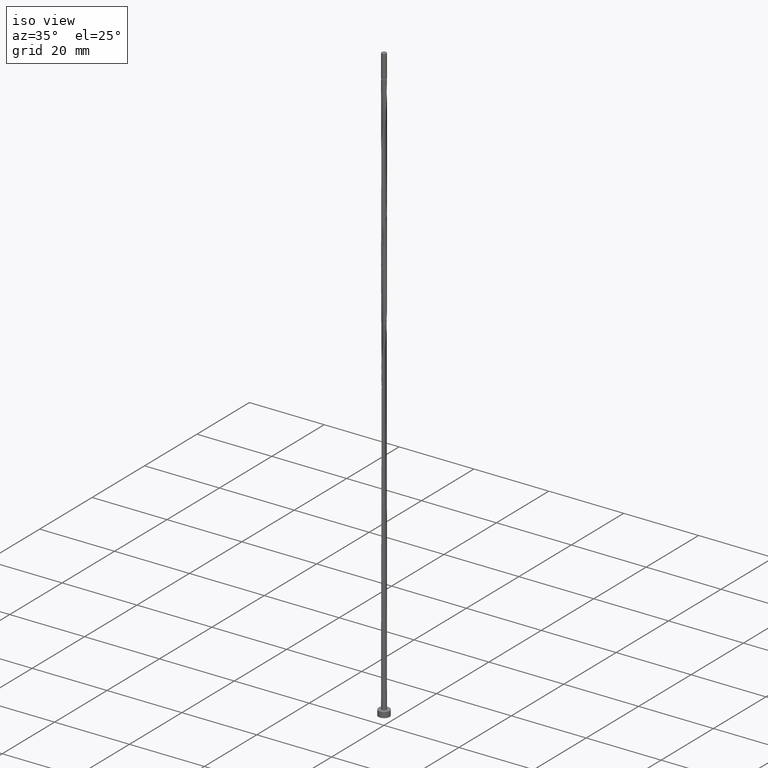
[diagram: clean part render]
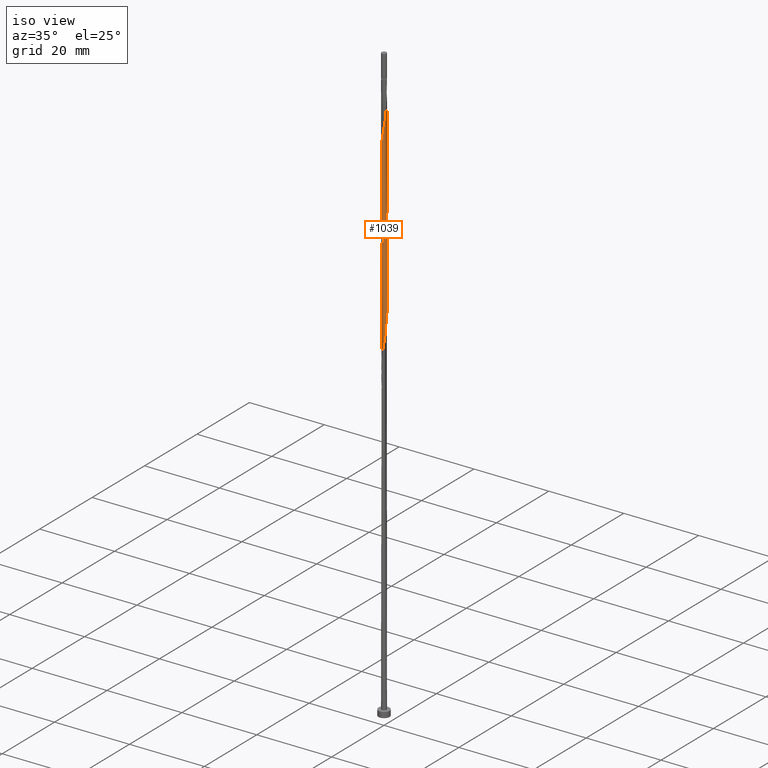
[diagram: same view with one face highlighted and labeled with its STEP entity id]
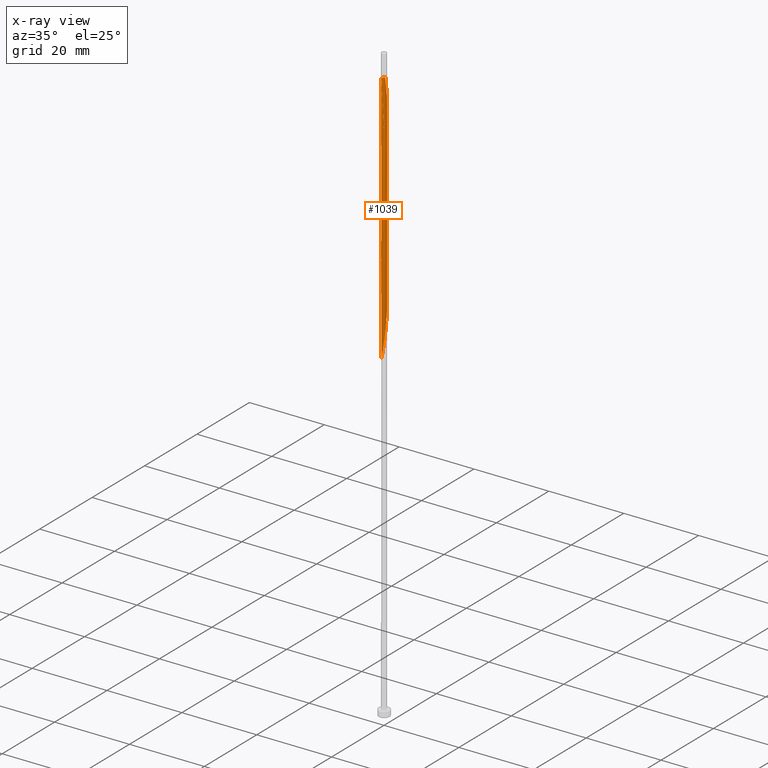
[diagram: x-ray of the same camera — body ghosted, the highlighted face saturated]
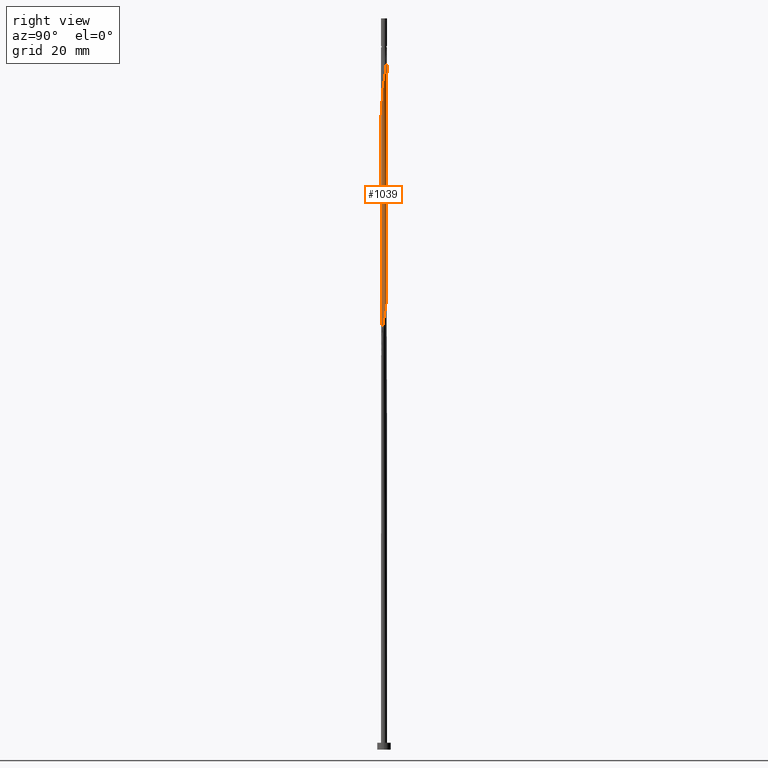
[diagram: same view with one face highlighted and labeled with its STEP entity id]
A machine part, iso view. The second image highlights one B-rep face of the part: STEP entity #1039.
The next image is the same camera in x-ray: the body ghosted, the highlighted face saturated — about 0% of this face is hidden behind the body in this view.
A second angle (right view) of the same face is appended — the face is thin or edge-on in the first view.
In plain terms, the highlighted cylindrical surface (bore or boss wall) has radius 0.65 mm, axis along (-0, -0, -1).
Its self-contained STEP definition (entity closure, byte-faithful):
#11 = CARTESIAN_POINT ( 'NONE',  ( -0.6435504153047297837, 0.1306784853822362258, 133.6889187798224725 ) ) ;
#12 = DIRECTION ( 'NONE',  ( -0.000000000000000000, -0.000000000000000000, -1.000000000000000000 ) ) ;
#29 = CARTESIAN_POINT ( 'NONE',  ( -0.2209351400986595826, -0.6184025124870299317, 86.41619150709522046 ) ) ;
#39 = CARTESIAN_POINT ( 'NONE',  ( 0.6120391835909891887, -0.2379958851114041540, 144.5980096889134643 ) ) ;
#48 = CARTESIAN_POINT ( 'NONE',  ( 0.1293483668238615825, 0.6370000000000007878, 127.0222521131558153 ) ) ;
#50 =( BOUNDED_CURVE ( )  B_SPLINE_CURVE ( 2, ( #1368, #166, #306, #1376, #1138, #54, #295, #546, #1504, #806, #432, #1263, #930, #173, #671, #357, #1436, #737, #457, #1081, #565, #1293, #104, #1171, #1524, #854, #710, #1190, #586, #234, #1535, #200, #952, #1045, #700, #577, #86, #1055, #1517, #449, #961, #1427, #1420, #340, #837, #849, #1303, #220, #721, #604, #495, #380, #1092, #872, #760, #257, #1224, #137, #627, #29, #1352, #386, #635, #266, #509, #768, #143, #1003, #273 ),
 .UNSPECIFIED., .F., .T. ) 
 B_SPLINE_CURVE_WITH_KNOTS ( ( 3, 2, 2, 2, 2, 2, 2, 2, 2, 2, 2, 2, 2, 2, 2, 2, 2, 2, 2, 2, 2, 2, 2, 2, 2, 2, 2, 2, 2, 2, 2, 2, 2, 2, 3 ),
 ( 0.5545252162417514397, 0.5568181818181817677, 0.5681818181818182323, 0.5795454545454545858, 0.5909090909090909394, 0.6022727272727272929, 0.6136363636363636465, 0.6250000000000000000, 0.6363636363636363535, 0.6477272727272727071, 0.6590909090909090606, 0.6704545454545454142, 0.6818181818181817677, 0.6931818181818182323, 0.7045454545454545858, 0.7159090909090909394, 0.7272727272727272929, 0.7386363636363636465, 0.7500000000000000000, 0.7613636363636363535, 0.7727272727272727071, 0.7840909090909090606, 0.7954545454545454142, 0.8068181818181817677, 0.8181818181818182323, 0.8295454545454545858, 0.8409090909090909394, 0.8522727272727272929, 0.8636363636363636465, 0.8750000000000000000, 0.8863636363636363535, 0.8977272727272727071, 0.9090909090909090606, 0.9204545454545454142, 0.9295252162417511066 ),
 .UNSPECIFIED. ) 
 CURVE ( )  GEOMETRIC_REPRESENTATION_ITEM ( )  RATIONAL_B_SPLINE_CURVE ( ( 0.9061101570135963179, 0.9072237824201785372, 0.9090909090909560231, 0.8998376744372580394, 0.9090909090909560231, 0.8998376744372580394, 0.9090909090909560231, 0.8998376744372580394, 0.9090909090909560231, 0.8998376744372580394, 0.9090909090909560231, 0.8998376744372580394, 0.9090909090909560231, 0.8998376744372580394, 0.9090909090909560231, 0.8998376744372580394, 0.9090909090909560231, 0.8998376744372580394, 0.9090909090909560231, 0.8998376744372580394, 0.9090909090909560231, 0.8998376744372580394, 0.9090909090909560231, 0.8998376744372580394, 0.9090909090909560231, 0.8998376744372580394, 0.9090909090909560231, 0.8998376744372580394, 0.9090909090909560231, 0.8998376744372580394, 0.9090909090909560231, 0.8998376744372580394, 0.9090909090909560231, 0.8998376744372580394, 0.9090909090909560231, 0.8998376744372580394, 0.9090909090909560231, 0.8998376744372580394, 0.9090909090909560231, 0.8998376744372580394, 0.9090909090909560231, 0.8998376744372580394, 0.9090909090909560231, 0.8998376744372580394, 0.9090909090909560231, 0.8998376744372580394, 0.9090909090909560231, 0.8998376744372580394, 0.9090909090909560231, 0.8998376744372580394, 0.9090909090909560231, 0.8998376744372580394, 0.9090909090909560231, 0.8998376744372580394, 0.9090909090909560231, 0.8998376744372580394, 0.9090909090909560231, 0.8998376744372580394, 0.9090909090909560231, 0.8998376744372580394, 0.9090909090909560231, 0.8998376744372580394, 0.9090909090909560231, 0.8998376744372580394, 0.9090909090909560231, 0.8998376744372580394, 0.9090909090909560231, 0.9017048011080357472, 0.9061101570135960959 ) ) 
 REPRESENTATION_ITEM ( '' )  );
#54 = CARTESIAN_POINT ( 'NONE',  ( 0.5806657178406771092, -0.3066941924870058567, 119.1434642343679400 ) ) ;
#55 = CARTESIAN_POINT ( 'NONE',  ( 0.2209351400986597491, 0.6184025124870299317, 126.4161915070952062 ) ) ;
#58 = ORIENTED_EDGE ( 'NONE', *, *, #121, .T. ) ;
#62 = CARTESIAN_POINT ( 'NONE',  ( 0.4532029712757329465, 0.4659474936372641762, 124.5980096889134074 ) ) ;
#70 = CARTESIAN_POINT ( 'NONE',  ( 0.3862098355493334689, -0.5311082436807418317, 142.1737672646709711 ) ) ;
#86 = CARTESIAN_POINT ( 'NONE',  ( 0.1293483668238615825, 0.6370000000000007878, 100.3555854464891439 ) ) ;
#87 = CYLINDRICAL_SURFACE ( 'NONE', #966, 0.6500000000000000222 ) ;
#95 = ORIENTED_EDGE ( 'NONE', *, *, #617, .F. ) ;
#102 = VERTEX_POINT ( 'NONE', #1106 ) ;
#104 = CARTESIAN_POINT ( 'NONE',  ( -0.6331688345267361129, -0.1469599502723646089, 108.8404339313376425 ) ) ;
#121 = EDGE_CURVE ( 'NONE', #1053, #1186, #145, .T. ) ;
#137 = CARTESIAN_POINT ( 'NONE',  ( -0.03776159354906351295, -0.6555974875129716439, 87.62831271921643861 ) ) ;
#143 = CARTESIAN_POINT ( 'NONE',  ( -0.6331688345267361129, -0.1469599502723646089, 82.17376726467097114 ) ) ;
#145 = LINE ( 'NONE', #988, #541 ) ;
#148 = CARTESIAN_POINT ( 'NONE',  ( -0.5806657178406768871, -0.3066941924870059122, 134.9010399919437191 ) ) ;
#157 = DIRECTION ( 'NONE',  ( -0.000000000000000000, -0.000000000000000000, -1.000000000000000000 ) ) ;
#164 = CARTESIAN_POINT ( 'NONE',  ( 0.3967073124307648468, 0.5149012606936985703, 150.0525551434588181 ) ) ;
#166 = CARTESIAN_POINT ( 'NONE',  ( 0.6500000000000009104, -0.01870409224048659794, 121.0829419210718356 ) ) ;
#171 = CARTESIAN_POINT ( 'NONE',  ( -0.1293483668238732676, 0.6370000000001735385, 153.6889187798224157 ) ) ;
#173 = CARTESIAN_POINT ( 'NONE',  ( -0.03776159354906351295, -0.6555974875129716439, 114.2949793858830958 ) ) ;
#180 = CARTESIAN_POINT ( 'NONE',  ( -0.6489244503836060218, -0.03737723497445563647, 133.0828581737619061 ) ) ;
#184 = CARTESIAN_POINT ( 'NONE',  ( 0.6120391835909892997, 0.2379958851114039875, 122.7798278707315518 ) ) ;
#200 = CARTESIAN_POINT ( 'NONE',  ( -0.3226756875923642576, 0.5719391612903250710, 103.3858884767921893 ) ) ;
#220 = CARTESIAN_POINT ( 'NONE',  ( 0.6435504153047297837, -0.1306784853822363091, 93.68891877982248673 ) ) ;
#226 = DIRECTION ( 'NONE',  ( -1.000000000000000000, 0.000000000000000000, 0.000000000000000000 ) ) ;
#229 = VERTEX_POINT ( 'NONE', #611 ) ;
#234 = CARTESIAN_POINT ( 'NONE',  ( -0.4707389372691662133, 0.4578633600970725692, 104.5980096889134217 ) ) ;
#243 = CARTESIAN_POINT ( 'NONE',  ( -0.2355734301626990213, 0.6058095071896618666, 129.4464945373982516 ) ) ;
#257 = CARTESIAN_POINT ( 'NONE',  ( 0.1484711727330340347, -0.6396798530889988843, 88.84043393133764255 ) ) ;
#265 = CIRCLE ( 'NONE', #374, 0.6499999999999933609 ) ;
#266 = CARTESIAN_POINT ( 'NONE',  ( -0.5201961070021328126, -0.4007867435937860767, 83.99194908285278416 ) ) ;
#270 = ORIENTED_EDGE ( 'NONE', *, *, #977, .F. ) ;
#273 = CARTESIAN_POINT ( 'NONE',  ( -0.6500000000000009104, -6.001424307277699212E-16, 81.20503992579004660 ) ) ;
#277 = CARTESIAN_POINT ( 'NONE',  ( 0.6542984854624824820, -0.05592401543332501529, 145.8101309010346256 ) ) ;
#284 = CARTESIAN_POINT ( 'NONE',  ( 0.4707389372691664353, 0.4578633600970720141, 149.4464945373981948 ) ) ;
#288 = CARTESIAN_POINT ( 'NONE',  ( 0.03776159354906333254, 0.6555974875129716439, 127.6283127192163960 ) ) ;
#292 = CARTESIAN_POINT ( 'NONE',  ( 0.1484711727330339792, 0.6396798530889984402, 151.8707369616406595 ) ) ;
#295 = CARTESIAN_POINT ( 'NONE',  ( 0.5257023275549215224, -0.3822787762920392129, 118.5374036283073309 ) ) ;
#299 = CARTESIAN_POINT ( 'NONE',  ( -0.2355734301626990768, -0.6058095071896616446, 137.9313430222467218 ) ) ;
#306 = CARTESIAN_POINT ( 'NONE',  ( 0.6489244503836064659, -0.03737723497445580301, 120.9616460525497814 ) ) ;
#314 = ORIENTED_EDGE ( 'NONE', *, *, #1508, .T. ) ;
#340 = CARTESIAN_POINT ( 'NONE',  ( 0.6120391835909892997, 0.2379958851114039875, 96.11316120406489460 ) ) ;
#353 = VERTEX_POINT ( 'NONE', #1021 ) ;
#357 = CARTESIAN_POINT ( 'NONE',  ( -0.2209351400986595826, -0.6184025124870299317, 113.0828581737618919 ) ) ;
#370 = CARTESIAN_POINT ( 'NONE',  ( -0.3967073124307652909, 0.5149012606936989034, 130.6586157495194414 ) ) ;
#372 = ORIENTED_EDGE ( 'NONE', *, *, #1361, .F. ) ;
#374 = AXIS2_PLACEMENT_3D ( 'NONE', #740, #1310, #226 ) ;
#380 = CARTESIAN_POINT ( 'NONE',  ( 0.4707389372691663243, -0.4578633600970724027, 91.26467635558006464 ) ) ;
#386 = CARTESIAN_POINT ( 'NONE',  ( -0.3862098355493334689, -0.5311082436807418317, 85.20407029497398810 ) ) ;
#421 = CARTESIAN_POINT ( 'NONE',  ( -0.6500000000000005773, -0.01870409224048389177, 132.9615623052398234 ) ) ;
#429 = CARTESIAN_POINT ( 'NONE',  ( 0.6489244503836060218, 0.03737723497445555321, 146.4161915070952205 ) ) ;
#432 = CARTESIAN_POINT ( 'NONE',  ( 0.2355734301626990213, -0.6058095071896618666, 116.1131612040648946 ) ) ;
#433 = CARTESIAN_POINT ( 'NONE',  ( 0.3862098355493334689, 0.5311082436807417206, 125.2040702949740307 ) ) ;
#449 = CARTESIAN_POINT ( 'NONE',  ( 0.3862098355493334689, 0.5311082436807417206, 98.53740362830735933 ) ) ;
#457 = CARTESIAN_POINT ( 'NONE',  ( -0.4532029712757332796, -0.4659474936372640097, 111.2646763555800788 ) ) ;
#479 = CARTESIAN_POINT ( 'NONE',  ( -0.6121080665727033354, 0.2186863389346210829, 133.0828581737619061 ) ) ;
#489 = CARTESIAN_POINT ( 'NONE',  ( -0.05535478959198530252, 0.6476386703009850976, 128.2343733252770335 ) ) ;
#494 = EDGE_CURVE ( 'NONE', #102, #1186, #50, .T. ) ;
#495 = CARTESIAN_POINT ( 'NONE',  ( 0.5257023275549215224, -0.3822787762920392129, 91.87073696164064529 ) ) ;
#509 = CARTESIAN_POINT ( 'NONE',  ( -0.5661176452965609451, -0.3193913143525952680, 83.38588847679218929 ) ) ;
#541 = VECTOR ( 'NONE', #1440, 1000.000000000000000 ) ;
#545 = CARTESIAN_POINT ( 'NONE',  ( 0.4532029712757327800, -0.4659474936372639542, 142.7798278707315376 ) ) ;
#546 = CARTESIAN_POINT ( 'NONE',  ( 0.4707389372691663243, -0.4578633600970724027, 117.9313430222467218 ) ) ;
#547 = CARTESIAN_POINT ( 'NONE',  ( 0.6500000000000009104, 4.655310443963075301E-16, 121.2050399257900466 ) ) ;
#565 = CARTESIAN_POINT ( 'NONE',  ( -0.5661176452965609451, -0.3193913143525952680, 110.0525551434588465 ) ) ;
#567 = CARTESIAN_POINT ( 'NONE',  ( -0.6500000000000005773, -2.580051571353032037E-16, 132.8394643005215983 ) ) ;
#577 = CARTESIAN_POINT ( 'NONE',  ( 0.03776159354906333254, 0.6555974875129716439, 100.9616460525497530 ) ) ;
#582 = ORIENTED_EDGE ( 'NONE', *, *, #936, .T. ) ;
#586 = CARTESIAN_POINT ( 'NONE',  ( -0.5257023275549215224, 0.3822787762920392129, 105.2040702949739881 ) ) ;
#588 = LINE ( 'NONE', #986, #886 ) ;
#604 = CARTESIAN_POINT ( 'NONE',  ( 0.5806657178406771092, -0.3066941924870058567, 92.47679756770124015 ) ) ;
#606 = CARTESIAN_POINT ( 'NONE',  ( -0.6500000000000010214, 0.01870409224048331584, 134.4162752544051500 ) ) ;
#611 = CARTESIAN_POINT ( 'NONE',  ( -0.6500000000000010214, 3.084844270096013415E-16, 134.5383732591233752 ) ) ;
#612 = CARTESIAN_POINT ( 'NONE',  ( -0.6500000000000010214, 3.084844270096013415E-16, 134.5383732591233752 ) ) ;
#617 = EDGE_CURVE ( 'NONE', #1053, #353, #1076, .T. ) ;
#627 = CARTESIAN_POINT ( 'NONE',  ( -0.1293483668238615547, -0.6370000000000007878, 87.02225211315582953 ) ) ;
#635 = CARTESIAN_POINT ( 'NONE',  ( -0.4532029712757332796, -0.4659474936372640097, 84.59800968891340744 ) ) ;
#637 = CARTESIAN_POINT ( 'NONE',  ( -0.1484711727330339515, 0.6396798530889988843, 128.8404339313376568 ) ) ;
#658 = CARTESIAN_POINT ( 'NONE',  ( 0.2355734301626988825, 0.6058095071896616446, 151.2646763555800931 ) ) ;
#668 = CARTESIAN_POINT ( 'NONE',  ( 0.5201961070021324796, -0.4007867435937862988, 143.3858884767922461 ) ) ;
#671 = CARTESIAN_POINT ( 'NONE',  ( -0.1293483668238615547, -0.6370000000000007878, 113.6889187798224867 ) ) ;
#684 = CARTESIAN_POINT ( 'NONE',  ( 0.6500000000000012434, 0.07444380280032790453, 121.6909998787613461 ) ) ;
#687 = VECTOR ( 'NONE', #157, 1000.000000000000000 ) ;
#692 = CARTESIAN_POINT ( 'NONE',  ( 0.5201961070021325906, 0.4007867435937864098, 123.9919490828527842 ) ) ;
#700 = CARTESIAN_POINT ( 'NONE',  ( -0.05535478959198530252, 0.6476386703009850976, 101.5677066586103621 ) ) ;
#710 = CARTESIAN_POINT ( 'NONE',  ( -0.6121080665727033354, 0.2186863389346210829, 106.4161915070952205 ) ) ;
#712 = CARTESIAN_POINT ( 'NONE',  ( -0.6500000000000009104, -6.001424307277699212E-16, 81.20503992579004660 ) ) ;
#721 = CARTESIAN_POINT ( 'NONE',  ( 0.6121080665727033354, -0.2186863389346211661, 93.08285817376186344 ) ) ;
#737 = CARTESIAN_POINT ( 'NONE',  ( -0.3862098355493334689, -0.5311082436807418317, 111.8707369616406879 ) ) ;
#739 = CARTESIAN_POINT ( 'NONE',  ( 0.6500000000000000222, 7.960204194457795477E-17, 153.6889187798225009 ) ) ;
#740 = CARTESIAN_POINT ( 'NONE',  ( 0.000000000000000000, 0.000000000000000000, 153.6889187798225009 ) ) ;
#760 = CARTESIAN_POINT ( 'NONE',  ( 0.2355734301626990213, -0.6058095071896618666, 89.44649453739825162 ) ) ;
#768 = CARTESIAN_POINT ( 'NONE',  ( -0.6120391835909891887, -0.2379958851114043206, 82.77982787073156601 ) ) ;
#783 = EDGE_LOOP ( 'NONE', ( #372, #582, #95, #58, #1135, #1313, #314, #270 ) ) ;
#784 = CARTESIAN_POINT ( 'NONE',  ( 0.5257023275549217445, 0.3822787762920389354, 148.8404339313376283 ) ) ;
#794 = CARTESIAN_POINT ( 'NONE',  ( -0.5257023275549216335, -0.3822787762920389909, 135.5071005980043140 ) ) ;
#803 = CARTESIAN_POINT ( 'NONE',  ( 0.3226756875923638690, 0.5719391612903250710, 150.6586157495194982 ) ) ;
#806 = CARTESIAN_POINT ( 'NONE',  ( 0.3226756875923641465, -0.5719391612903250710, 116.7192218101255321 ) ) ;
#812 = CARTESIAN_POINT ( 'NONE',  ( 0.3035724878239963176, -0.5747553780838857707, 141.5677066586103194 ) ) ;
#837 = CARTESIAN_POINT ( 'NONE',  ( 0.6331688345267362239, 0.1469599502723644147, 95.50710059800431395 ) ) ;
#849 = CARTESIAN_POINT ( 'NONE',  ( 0.6542984854624827040, 0.05592401543332476549, 94.90103999194370488 ) ) ;
#854 = CARTESIAN_POINT ( 'NONE',  ( -0.6435504153047297837, 0.1306784853822362258, 107.0222521131558011 ) ) ;
#858 = CARTESIAN_POINT ( 'NONE',  ( -0.3226756875923642576, 0.5719391612903250710, 130.0525551434588749 ) ) ;
#872 = CARTESIAN_POINT ( 'NONE',  ( 0.3226756875923641465, -0.5719391612903250710, 90.05255514345884649 ) ) ;
#886 = VECTOR ( 'NONE', #12, 1000.000000000000000 ) ;
#887 = CARTESIAN_POINT ( 'NONE',  ( 0.6500000000000000222, 7.960204194457795477E-17, 160.0000000000000000 ) ) ;
#904 = CARTESIAN_POINT ( 'NONE',  ( -0.6121080665727033354, -0.2186863389346209718, 134.2949793858830674 ) ) ;
#909 = CARTESIAN_POINT ( 'NONE',  ( -0.4707389372691661023, -0.4578633600970722362, 136.1131612040648804 ) ) ;
#919 = CARTESIAN_POINT ( 'NONE',  ( -0.3967073124307650689, -0.5149012606936985703, 136.7192218101255037 ) ) ;
#923 = CARTESIAN_POINT ( 'NONE',  ( 0.6331688345267362239, 0.1469599502723644147, 122.1737672646709996 ) ) ;
#928 = CARTESIAN_POINT ( 'NONE',  ( 0.6435504153047295617, 0.1306784853822360870, 147.0222521131558153 ) ) ;
#930 = CARTESIAN_POINT ( 'NONE',  ( 0.05535478959198508048, -0.6476386703009850976, 114.9010399919437049 ) ) ;
#936 = EDGE_CURVE ( 'NONE', #1108, #353, #265, .T. ) ;
#952 = CARTESIAN_POINT ( 'NONE',  ( -0.2355734301626990213, 0.6058095071896618666, 102.7798278707316086 ) ) ;
#954 = DIRECTION ( 'NONE',  ( -1.000000000000000000, 0.000000000000000000, 0.000000000000000000 ) ) ;
#961 = CARTESIAN_POINT ( 'NONE',  ( 0.4532029712757329465, 0.4659474936372641762, 97.93134302224675025 ) ) ;
#966 = AXIS2_PLACEMENT_3D ( 'NONE', #1072, #1093, #954 ) ;
#977 = EDGE_CURVE ( 'NONE', #229, #102, #1229, .T. ) ;
#980 = CARTESIAN_POINT ( 'NONE',  ( -0.5806657178406771092, 0.3066941924870058567, 132.4767975677012544 ) ) ;
#986 = CARTESIAN_POINT ( 'NONE',  ( -0.6500000000000000222, 0.000000000000000000, 160.0000000000000000 ) ) ;
#988 = CARTESIAN_POINT ( 'NONE',  ( -0.6500000000000000222, 0.000000000000000000, 160.0000000000000000 ) ) ;
#1003 = CARTESIAN_POINT ( 'NONE',  ( -0.6500000000000003553, -0.07444380280033080499, 81.69099987876137448 ) ) ;
#1019 = CARTESIAN_POINT ( 'NONE',  ( 0.1293483668238613604, -0.6370000000000004547, 140.3555854464891297 ) ) ;
#1021 = CARTESIAN_POINT ( 'NONE',  ( -0.1293483668238732676, 0.6370000000001735385, 153.6889187798224157 ) ) ;
#1028 = CARTESIAN_POINT ( 'NONE',  ( 0.5661176452965609451, 0.3193913143525954901, 123.3858884767921893 ) ) ;
#1033 = CARTESIAN_POINT ( 'NONE',  ( 0.03776159354906332560, -0.6555974875129713109, 139.7495248404285633 ) ) ;
#1039 = ADVANCED_FACE ( 'NONE', ( #1526 ), #87, .T. ) ;
#1045 = CARTESIAN_POINT ( 'NONE',  ( -0.1484711727330339515, 0.6396798530889988843, 102.1737672646709711 ) ) ;
#1053 = VERTEX_POINT ( 'NONE', #567 ) ;
#1055 = CARTESIAN_POINT ( 'NONE',  ( 0.2209351400986597491, 0.6184025124870299317, 99.74952484042854906 ) ) ;
#1072 = CARTESIAN_POINT ( 'NONE',  ( 0.000000000000000000, 0.000000000000000000, 160.0000000000000000 ) ) ;
#1076 =( BOUNDED_CURVE ( )  B_SPLINE_CURVE ( 2, ( #1245, #421, #180, #1362, #904, #148, #794, #909, #919, #1380, #299, #1152, #1127, #1033, #1019, #1255, #812, #70, #545, #668, #1502, #39, #1374, #277, #429, #928, #1484, #1387, #784, #284, #164, #803, #658, #292, #1136, #1260, #171 ),
 .UNSPECIFIED., .F., .T. ) 
 B_SPLINE_CURVE_WITH_KNOTS ( ( 3, 2, 2, 2, 2, 2, 2, 2, 2, 2, 2, 2, 2, 2, 2, 2, 2, 2, 3 ),
 ( 0.5545252162417512176, 0.5568181818181818787, 0.5681818181818181213, 0.5795454545454545858, 0.5909090909090907173, 0.6022727272727271819, 0.6136363636363635354, 0.6249999999999998890, 0.6363636363636362425, 0.6477272727272724850, 0.6590909090909089496, 0.6704545454545451921, 0.6818181818181816567, 0.6931818181818178992, 0.7045454545454543638, 0.7159090909090906063, 0.7272727272727270709, 0.7386363636363633134, 0.7499999999999996669 ),
 .UNSPECIFIED. ) 
 CURVE ( )  GEOMETRIC_REPRESENTATION_ITEM ( )  RATIONAL_B_SPLINE_CURVE ( ( 0.9061101570135950967, 0.9072237824201773160, 0.9090909090909550239, 0.8998376744372569291, 0.9090909090909550239, 0.8998376744372569291, 0.9090909090909550239, 0.8998376744372569291, 0.9090909090909550239, 0.8998376744372569291, 0.9090909090909550239, 0.8998376744372569291, 0.9090909090909550239, 0.8998376744372569291, 0.9090909090909550239, 0.8998376744372569291, 0.9090909090909550239, 0.8998376744372569291, 0.9090909090909550239, 0.8998376744372569291, 0.9090909090909550239, 0.8998376744372569291, 0.9090909090909550239, 0.8998376744372569291, 0.9090909090909550239, 0.8998376744372569291, 0.9090909090909550239, 0.8998376744372569291, 0.9090909090909550239, 0.8998376744372569291, 0.9090909090909550239, 0.8998376744372569291, 0.9090909090909550239, 0.8998376744372569291, 0.9090909090909550239, 0.8998376744372571512, 0.9090909090909548018 ) ) 
 REPRESENTATION_ITEM ( '' )  );
#1081 = CARTESIAN_POINT ( 'NONE',  ( -0.5201961070021328126, -0.4007867435937860767, 110.6586157495194414 ) ) ;
#1092 = CARTESIAN_POINT ( 'NONE',  ( 0.3967073124307651244, -0.5149012606936989034, 90.65861574951945556 ) ) ;
#1093 = DIRECTION ( 'NONE',  ( -0.000000000000000000, -0.000000000000000000, -1.000000000000000000 ) ) ;
#1094 = CARTESIAN_POINT ( 'NONE',  ( -0.6489244503836064659, 0.03737723497445571280, 134.2949793858830674 ) ) ;
#1106 = CARTESIAN_POINT ( 'NONE',  ( 0.6500000000000009104, 4.655310443963075301E-16, 121.2050399257900466 ) ) ;
#1108 = VERTEX_POINT ( 'NONE', #1428 ) ;
#1127 = CARTESIAN_POINT ( 'NONE',  ( -0.05535478959198525395, -0.6476386703009849866, 139.1434642343679116 ) ) ;
#1135 = ORIENTED_EDGE ( 'NONE', *, *, #494, .F. ) ;
#1136 = CARTESIAN_POINT ( 'NONE',  ( 0.05535478959198530946, 0.6476386703009849866, 152.4767975677012828 ) ) ;
#1138 = CARTESIAN_POINT ( 'NONE',  ( 0.6121080665727033354, -0.2186863389346211661, 119.7495248404285633 ) ) ;
#1152 = CARTESIAN_POINT ( 'NONE',  ( -0.1484711727330338404, -0.6396798530889986623, 138.5374036283073451 ) ) ;
#1169 = VERTEX_POINT ( 'NONE', #739 ) ;
#1171 = CARTESIAN_POINT ( 'NONE',  ( -0.6542984854624827040, -0.05592401543332500835, 108.2343733252770477 ) ) ;
#1186 = VERTEX_POINT ( 'NONE', #712 ) ;
#1190 = CARTESIAN_POINT ( 'NONE',  ( -0.5806657178406771092, 0.3066941924870058567, 105.8101309010345972 ) ) ;
#1224 = CARTESIAN_POINT ( 'NONE',  ( 0.05535478959198508048, -0.6476386703009850976, 88.23437332527703347 ) ) ;
#1229 =( BOUNDED_CURVE ( )  B_SPLINE_CURVE ( 2, ( #612, #606, #1094, #11, #479, #980, #1528, #1441, #370, #858, #243, #637, #489, #288, #48, #55, #1285, #433, #62, #692, #1028, #184, #923, #684, #547 ),
 .UNSPECIFIED., .F., .T. ) 
 B_SPLINE_CURVE_WITH_KNOTS ( ( 3, 2, 2, 2, 2, 2, 2, 2, 2, 2, 2, 2, 3 ),
 ( 0.4295252162417511066, 0.4318181818181818232, 0.4431818181818181768, 0.4545454545454545303, 0.4659090909090908839, 0.4772727272727272929, 0.4886363636363636465, 0.5000000000000000000, 0.5113636363636363535, 0.5227272727272727071, 0.5340909090909090606, 0.5454545454545454142, 0.5545252162417514397 ),
 .UNSPECIFIED. ) 
 CURVE ( )  GEOMETRIC_REPRESENTATION_ITEM ( )  RATIONAL_B_SPLINE_CURVE ( ( 0.9061101570135960959, 0.9072237824201783152, 0.9090909090909560231, 0.8998376744372580394, 0.9090909090909560231, 0.8998376744372580394, 0.9090909090909560231, 0.8998376744372580394, 0.9090909090909560231, 0.8998376744372580394, 0.9090909090909560231, 0.8998376744372580394, 0.9090909090909560231, 0.8998376744372580394, 0.9090909090909560231, 0.8998376744372580394, 0.9090909090909560231, 0.8998376744372580394, 0.9090909090909560231, 0.8998376744372580394, 0.9090909090909560231, 0.8998376744372580394, 0.9090909090909560231, 0.9017048011080354142, 0.9061101570135963179 ) ) 
 REPRESENTATION_ITEM ( '' )  );
#1245 = CARTESIAN_POINT ( 'NONE',  ( -0.6500000000000005773, -2.580051571353032037E-16, 132.8394643005215983 ) ) ;
#1249 = LINE ( 'NONE', #887, #687 ) ;
#1255 = CARTESIAN_POINT ( 'NONE',  ( 0.2209351400986594716, -0.6184025124870299317, 140.9616460525497246 ) ) ;
#1260 = CARTESIAN_POINT ( 'NONE',  ( -0.03776159354906048760, 0.6555974875129711998, 153.0828581737618777 ) ) ;
#1263 = CARTESIAN_POINT ( 'NONE',  ( 0.1484711727330340347, -0.6396798530889988843, 115.5071005980042713 ) ) ;
#1285 = CARTESIAN_POINT ( 'NONE',  ( 0.3035724878239965396, 0.5747553780838858817, 125.8101309010345972 ) ) ;
#1293 = CARTESIAN_POINT ( 'NONE',  ( -0.6120391835909891887, -0.2379958851114043206, 109.4464945373982374 ) ) ;
#1303 = CARTESIAN_POINT ( 'NONE',  ( 0.6489244503836064659, -0.03737723497445580301, 94.29497938588312422 ) ) ;
#1310 = DIRECTION ( 'NONE',  ( -0.000000000000000000, -0.000000000000000000, -1.000000000000000000 ) ) ;
#1313 = ORIENTED_EDGE ( 'NONE', *, *, #1508, .F. ) ;
#1352 = CARTESIAN_POINT ( 'NONE',  ( -0.3035724878239964841, -0.5747553780838858817, 85.81013090103462559 ) ) ;
#1361 = EDGE_CURVE ( 'NONE', #1108, #229, #588, .T. ) ;
#1362 = CARTESIAN_POINT ( 'NONE',  ( -0.6435504153047295617, -0.1306784853822361425, 133.6889187798224725 ) ) ;
#1368 = CARTESIAN_POINT ( 'NONE',  ( 0.6500000000000009104, 4.655310443963075301E-16, 121.2050399257900466 ) ) ;
#1374 = CARTESIAN_POINT ( 'NONE',  ( 0.6331688345267358908, -0.1469599502723646089, 145.2040702949739455 ) ) ;
#1376 = CARTESIAN_POINT ( 'NONE',  ( 0.6435504153047297837, -0.1306784853822363091, 120.3555854464891439 ) ) ;
#1380 = CARTESIAN_POINT ( 'NONE',  ( -0.3226756875923642021, -0.5719391612903248490, 137.3252824161861270 ) ) ;
#1387 = CARTESIAN_POINT ( 'NONE',  ( 0.5806657178406771092, 0.3066941924870057457, 148.2343733252770335 ) ) ;
#1420 = CARTESIAN_POINT ( 'NONE',  ( 0.5661176452965609451, 0.3193913143525954901, 96.71922181012553210 ) ) ;
#1427 = CARTESIAN_POINT ( 'NONE',  ( 0.5201961070021325906, 0.4007867435937864098, 97.32528241618612697 ) ) ;
#1428 = CARTESIAN_POINT ( 'NONE',  ( -0.6499999999999933609, 0.000000000000000000, 153.6889187798225009 ) ) ;
#1436 = CARTESIAN_POINT ( 'NONE',  ( -0.3035724878239964841, -0.5747553780838858817, 112.4767975677012828 ) ) ;
#1440 = DIRECTION ( 'NONE',  ( -0.000000000000000000, -0.000000000000000000, -1.000000000000000000 ) ) ;
#1441 = CARTESIAN_POINT ( 'NONE',  ( -0.4707389372691662133, 0.4578633600970725692, 131.2646763555800646 ) ) ;
#1484 = CARTESIAN_POINT ( 'NONE',  ( 0.6121080665727034464, 0.2186863389346208608, 147.6283127192163533 ) ) ;
#1502 = CARTESIAN_POINT ( 'NONE',  ( 0.5661176452965605010, -0.3193913143525952680, 143.9919490828527842 ) ) ;
#1504 = CARTESIAN_POINT ( 'NONE',  ( 0.3967073124307651244, -0.5149012606936989034, 117.3252824161861412 ) ) ;
#1508 = EDGE_CURVE ( 'NONE', #1169, #102, #1249, .T. ) ;
#1517 = CARTESIAN_POINT ( 'NONE',  ( 0.3035724878239965396, 0.5747553780838858817, 99.14346423436795419 ) ) ;
#1524 = CARTESIAN_POINT ( 'NONE',  ( -0.6489244503836064659, 0.03737723497445571280, 107.6283127192164386 ) ) ;
#1526 = FACE_OUTER_BOUND ( 'NONE', #783, .T. ) ;
#1528 = CARTESIAN_POINT ( 'NONE',  ( -0.5257023275549215224, 0.3822787762920392129, 131.8707369616406311 ) ) ;
#1535 = CARTESIAN_POINT ( 'NONE',  ( -0.3967073124307652909, 0.5149012606936989034, 103.9919490828527842 ) ) ;